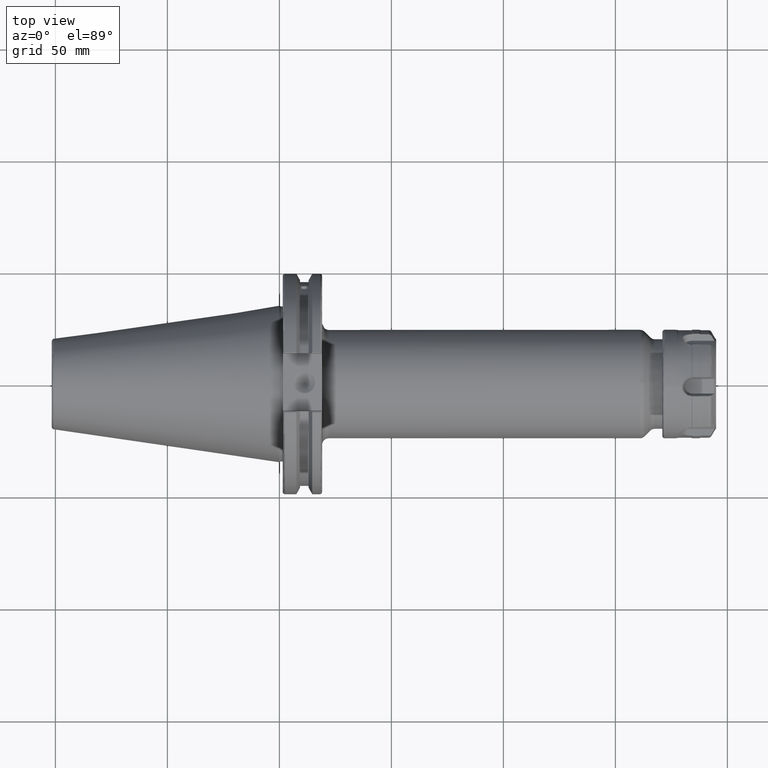
[diagram: clean part render]
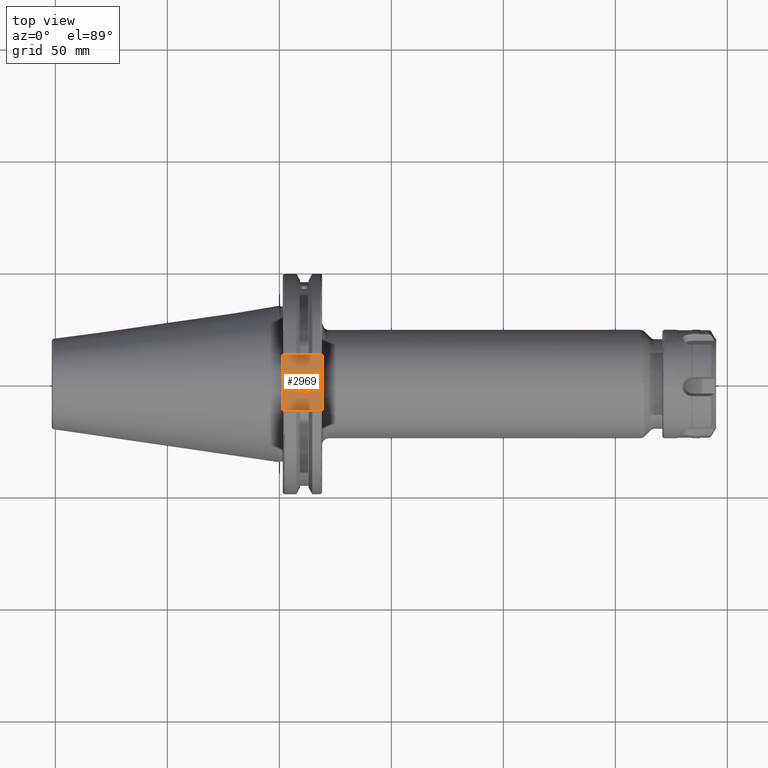
[diagram: same view with one face highlighted and labeled with its STEP entity id]
A machine part, top view. The second image highlights one B-rep face of the part: STEP entity #2969.
In plain terms, the highlighted planar face has unit normal (0, 0, 1).
Its self-contained STEP definition (entity closure, byte-faithful):
#202=LINE('',#4396,#372);
#261=LINE('',#5177,#431);
#273=LINE('',#5222,#443);
#275=LINE('',#5225,#445);
#372=VECTOR('',#3555,10.);
#431=VECTOR('',#3782,10.);
#443=VECTOR('',#3824,10.);
#445=VECTOR('',#3828,10.);
#590=FACE_BOUND('',#925,.T.);
#632=PLANE('',#3285);
#740=FACE_OUTER_BOUND('',#924,.T.);
#924=EDGE_LOOP('',(#2388,#2389,#2390,#2391));
#925=EDGE_LOOP('',(#2392));
#1100=CIRCLE('',#3277,4.7625);
#1215=VERTEX_POINT('',#4393);
#1216=VERTEX_POINT('',#4395);
#1327=VERTEX_POINT('',#5174);
#1328=VERTEX_POINT('',#5176);
#1348=VERTEX_POINT('',#5261);
#1529=EDGE_CURVE('',#1215,#1216,#202,.T.);
#1683=EDGE_CURVE('',#1327,#1328,#261,.T.);
#1704=EDGE_CURVE('',#1216,#1327,#273,.T.);
#1706=EDGE_CURVE('',#1328,#1215,#275,.T.);
#1721=EDGE_CURVE('',#1348,#1348,#1100,.T.);
#2388=ORIENTED_EDGE('',*,*,#1704,.F.);
#2389=ORIENTED_EDGE('',*,*,#1529,.F.);
#2390=ORIENTED_EDGE('',*,*,#1706,.F.);
#2391=ORIENTED_EDGE('',*,*,#1683,.F.);
#2392=ORIENTED_EDGE('',*,*,#1721,.T.);
#2969=ADVANCED_FACE('',(#740,#590),#632,.T.);
#3277=AXIS2_PLACEMENT_3D('',#5262,#3863,#3864);
#3285=AXIS2_PLACEMENT_3D('',#5271,#3880,#3881);
#3555=DIRECTION('',(0.,-1.,0.));
#3782=DIRECTION('',(0.,1.,0.));
#3824=DIRECTION('',(-1.,1.19700595646917E-16,0.));
#3828=DIRECTION('',(1.,0.,0.));
#3863=DIRECTION('center_axis',(0.,0.,-1.));
#3864=DIRECTION('ref_axis',(1.,0.,0.));
#3880=DIRECTION('center_axis',(0.,0.,1.));
#3881=DIRECTION('ref_axis',(1.,0.,0.));
#4393=CARTESIAN_POINT('',(19.05,12.45,37.719));
#4395=CARTESIAN_POINT('',(19.05,-12.45,37.719));
#4396=CARTESIAN_POINT('',(19.05,0.,37.719));
#5174=CARTESIAN_POINT('',(1.5,-12.45,37.719));
#5176=CARTESIAN_POINT('',(1.5,12.45,37.719));
#5177=CARTESIAN_POINT('',(1.5,24.60625,37.719));
#5222=CARTESIAN_POINT('',(9.375,-12.45,37.719));
#5225=CARTESIAN_POINT('',(18.65,12.45,37.719));
#5261=CARTESIAN_POINT('',(6.3716,-5.83238038093927E-16,37.719));
#5262=CARTESIAN_POINT('Origin',(11.1341,0.,37.719));
#5271=CARTESIAN_POINT('Origin',(17.25,0.,37.719));